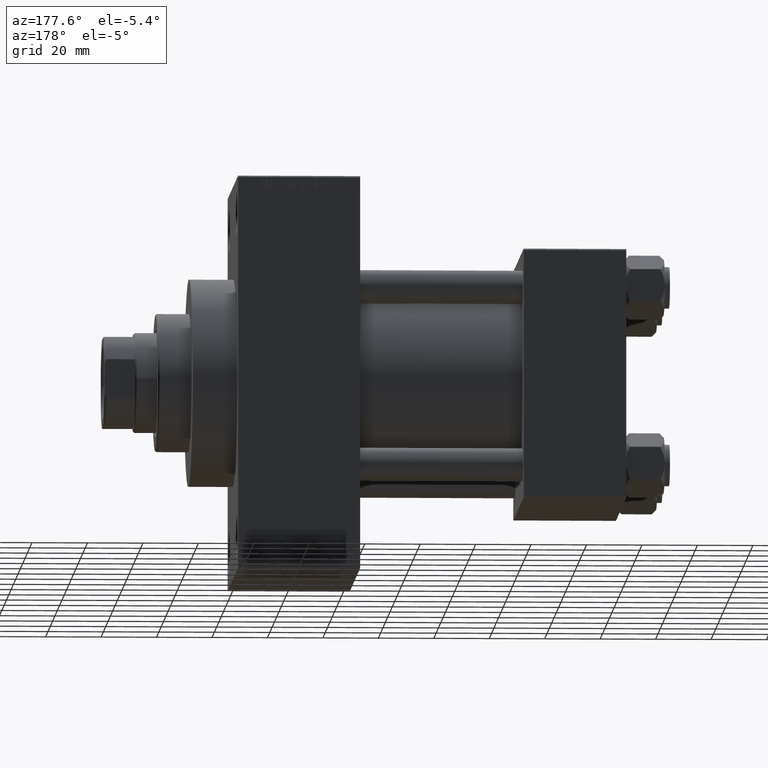
[diagram: clean part render]
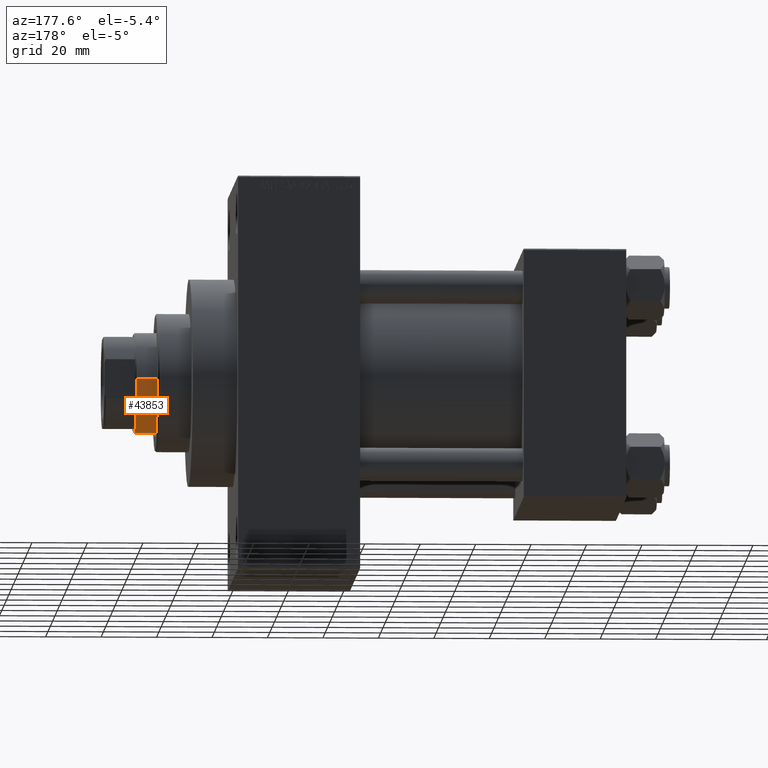
[diagram: same view with one face highlighted and labeled with its STEP entity id]
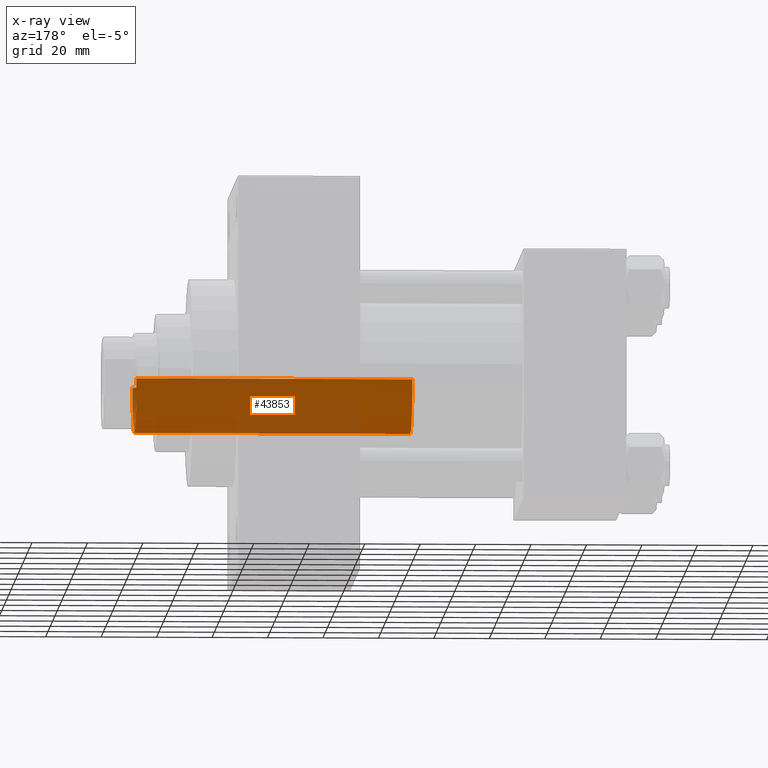
[diagram: x-ray of the same camera — body ghosted, the highlighted face saturated]
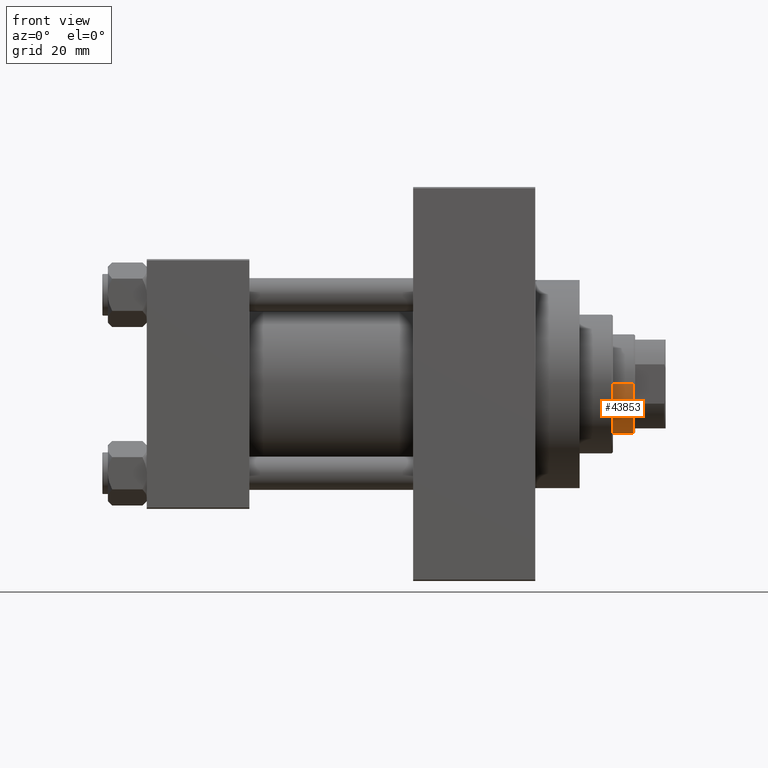
[diagram: same view with one face highlighted and labeled with its STEP entity id]
A machine part, auxiliary view. The second image highlights one B-rep face of the part: STEP entity #43853.
The next image is the same camera in x-ray: the body ghosted, the highlighted face saturated — about 26% of this face is hidden behind the body in this view.
A second angle (front view) of the same face is appended — the face is thin or edge-on in the first view.
In plain terms, the highlighted cylindrical surface (partial cylindrical patch) has radius 18 mm, axis along (-1, 0, 0).
Its self-contained STEP definition (entity closure, byte-faithful):
#898 = VECTOR ( 'NONE', #34425, 1000.000000000000000 ) ;
#3358 = DIRECTION ( 'NONE',  ( -1.000000000000000000, 0.000000000000000000, 0.000000000000000000 ) ) ;
#3437 = EDGE_CURVE ( 'NONE', #14414, #18602, #46202, .T. ) ;
#4828 = LINE ( 'NONE', #44956, #898 ) ;
#5753 = AXIS2_PLACEMENT_3D ( 'NONE', #25309, #14783, #3358 ) ;
#9132 = VERTEX_POINT ( 'NONE', #23445 ) ;
#9826 = CARTESIAN_POINT ( 'NONE',  ( 18.00000000000000000, 2.204364238465235428E-15, 138.5000000000000000 ) ) ;
#10528 = CYLINDRICAL_SURFACE ( 'NONE', #5753, 18.00000000000000000 ) ;
#11954 = DIRECTION ( 'NONE',  ( 0.000000000000000000, 0.000000000000000000, 1.000000000000000000 ) ) ;
#12548 = EDGE_CURVE ( 'NONE', #18602, #9132, #4828, .T. ) ;
#14414 = VERTEX_POINT ( 'NONE', #21403 ) ;
#14783 = DIRECTION ( 'NONE',  ( -0.000000000000000000, -0.000000000000000000, -1.000000000000000000 ) ) ;
#14822 = VECTOR ( 'NONE', #35685, 1000.000000000000000 ) ;
#16628 = ORIENTED_EDGE ( 'NONE', *, *, #17514, .T. ) ;
#17502 = DIRECTION ( 'NONE',  ( 0.000000000000000000, 0.000000000000000000, -1.000000000000000000 ) ) ;
#17514 = EDGE_CURVE ( 'NONE', #9132, #26723, #44533, .T. ) ;
#18602 = VERTEX_POINT ( 'NONE', #9826 ) ;
#20467 = ORIENTED_EDGE ( 'NONE', *, *, #12548, .T. ) ;
#21403 = CARTESIAN_POINT ( 'NONE',  ( -18.00000000000000000, 0.000000000000000000, 138.5000000000000000 ) ) ;
#22221 = CARTESIAN_POINT ( 'NONE',  ( 0.000000000000000000, 0.000000000000000000, 39.00000000000000000 ) ) ;
#23445 = CARTESIAN_POINT ( 'NONE',  ( 18.00000000000000000, 2.204364238465235428E-15, 39.00000000000000000 ) ) ;
#24694 = CARTESIAN_POINT ( 'NONE',  ( -18.00000000000000000, 0.000000000000000000, 139.0000000000000000 ) ) ;
#25309 = CARTESIAN_POINT ( 'NONE',  ( 0.000000000000000000, 0.000000000000000000, 139.0000000000000000 ) ) ;
#25604 = AXIS2_PLACEMENT_3D ( 'NONE', #28484, #17502, #35879 ) ;
#26723 = VERTEX_POINT ( 'NONE', #40420 ) ;
#28295 = LINE ( 'NONE', #24694, #14822 ) ;
#28484 = CARTESIAN_POINT ( 'NONE',  ( 0.000000000000000000, 0.000000000000000000, 138.5000000000000000 ) ) ;
#28679 = FACE_OUTER_BOUND ( 'NONE', #41724, .T. ) ;
#29938 = AXIS2_PLACEMENT_3D ( 'NONE', #22221, #11954, #36769 ) ;
#34175 = ORIENTED_EDGE ( 'NONE', *, *, #42388, .F. ) ;
#34425 = DIRECTION ( 'NONE',  ( -0.000000000000000000, -0.000000000000000000, -1.000000000000000000 ) ) ;
#35685 = DIRECTION ( 'NONE',  ( -0.000000000000000000, -0.000000000000000000, -1.000000000000000000 ) ) ;
#35879 = DIRECTION ( 'NONE',  ( 1.000000000000000000, 0.000000000000000000, 0.000000000000000000 ) ) ;
#36769 = DIRECTION ( 'NONE',  ( 1.000000000000000000, 0.000000000000000000, 0.000000000000000000 ) ) ;
#40420 = CARTESIAN_POINT ( 'NONE',  ( -18.00000000000000000, 0.000000000000000000, 39.00000000000000000 ) ) ;
#41724 = EDGE_LOOP ( 'NONE', ( #45362, #20467, #16628, #34175 ) ) ;
#42388 = EDGE_CURVE ( 'NONE', #14414, #26723, #28295, .T. ) ;
#43853 = ADVANCED_FACE ( 'NONE', ( #28679 ), #10528, .T. ) ;
#44533 = CIRCLE ( 'NONE', #29938, 18.00000000000000000 ) ;
#44956 = CARTESIAN_POINT ( 'NONE',  ( 18.00000000000000000, 2.204364238465235428E-15, 139.0000000000000000 ) ) ;
#45362 = ORIENTED_EDGE ( 'NONE', *, *, #3437, .T. ) ;
#46202 = CIRCLE ( 'NONE', #25604, 18.00000000000000000 ) ;